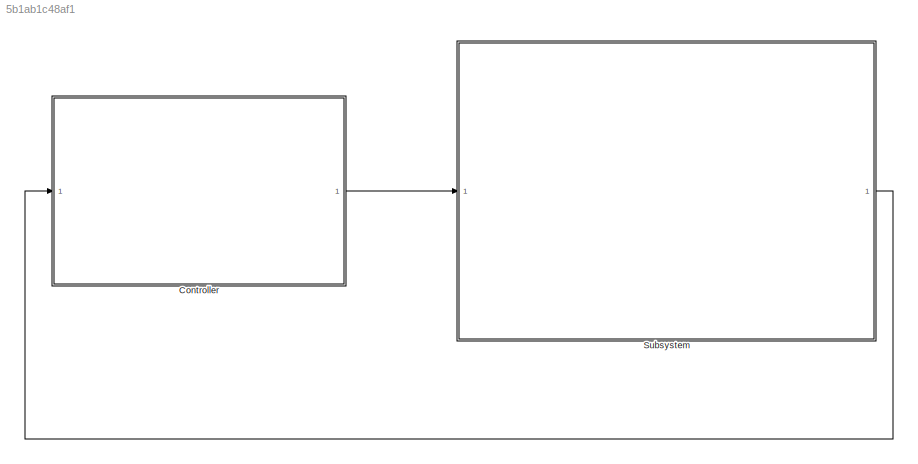
MODEL slx_5b1ab1c48af1
KIND model
CONFIG AbsTol = auto
CONFIG EnableMultiTasking = off
CONFIG FixedStep = auto
CONFIG MaxStep = auto
CONFIG MinStep = auto
CONFIG RelTol = 1e-3
CONFIG SampleTimeConstraint = Unconstrained
CONFIG Solver = VariableStepAuto
CONFIG SolverName = VariableStepAuto
CONFIG StartTime = 0.0
CONFIG StopTime = 10.0
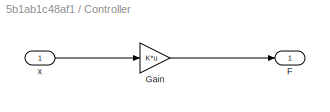
BLOCK [SubSystem] Controller
  Ports = [1, 1]
  RequestExecContextInheritance = off
BLOCK [Outport] Controller/F
  IconDisplay = Port number
BLOCK [Gain] Controller/Gain
  Gain = K*u
  OutDataTypeStr = Inherit: Inherit via internal rule
  ParamDataTypeStr = Inherit: Inherit via internal rule
  SaturateOnIntegerOverflow = off
BLOCK [Inport] Controller/x
  IconDisplay = Port number
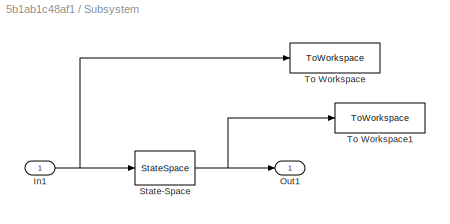
BLOCK [SubSystem] Subsystem
  Ports = [1, 1]
  RequestExecContextInheritance = off
BLOCK [Inport] Subsystem/In1
  IconDisplay = Port number
BLOCK [Outport] Subsystem/Out1
  IconDisplay = Port number
BLOCK [StateSpace] Subsystem/State-Space
  A = A_mat
  B = B_mat
  C = C_mat
  D = D_mat
  InitialCondition = 0
  Ports = [1, 1]
BLOCK [ToWorkspace] Subsystem/To Workspace
  FixptAsFi = on
  MaxDataPoints = inf
  Ports = [1]
  SampleTime = -1
  SaveFormat = Timeseries
  VariableName = F
BLOCK [ToWorkspace] Subsystem/To Workspace1
  FixptAsFi = on
  MaxDataPoints = inf
  Ports = [1]
  SampleTime = -1
  SaveFormat = Timeseries
  VariableName = x
LINE Controller/Gain:1 -> Controller/F:1
LINE Controller/x:1 -> Controller/Gain:1
LINE Controller:1 -> Subsystem:1
NET Subsystem/In1:1 -> Subsystem/State-Space:1, Subsystem/To Workspace:1
NET Subsystem/State-Space:1 -> Subsystem/Out1:1, Subsystem/To Workspace1:1
LINE Subsystem:1 -> Controller:1
note: NET lines group one-source signal fan-out (src -> all destinations, sorted); 1:1 wires keep LINE
